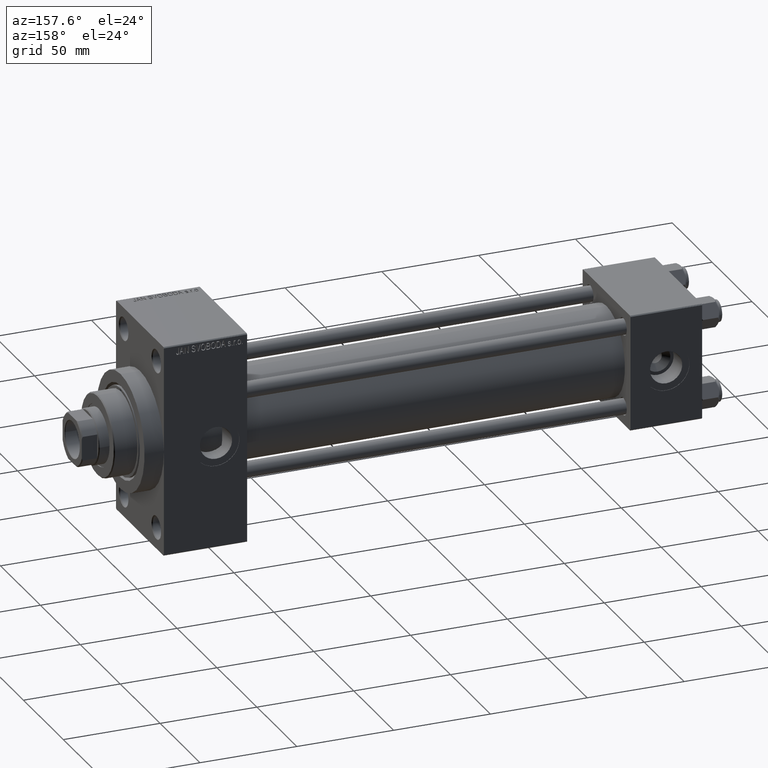
[diagram: clean part render]
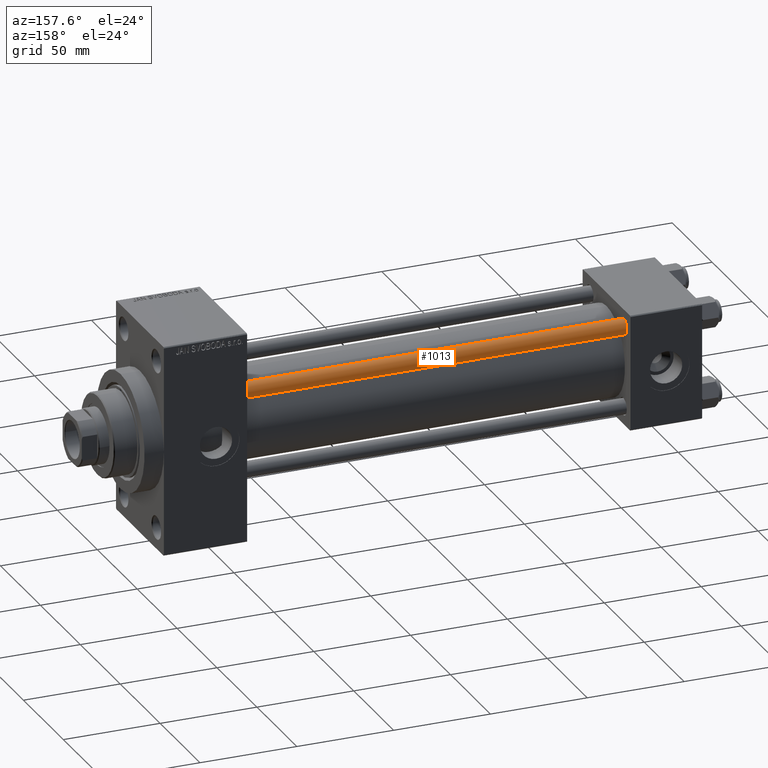
[diagram: same view with one face highlighted and labeled with its STEP entity id]
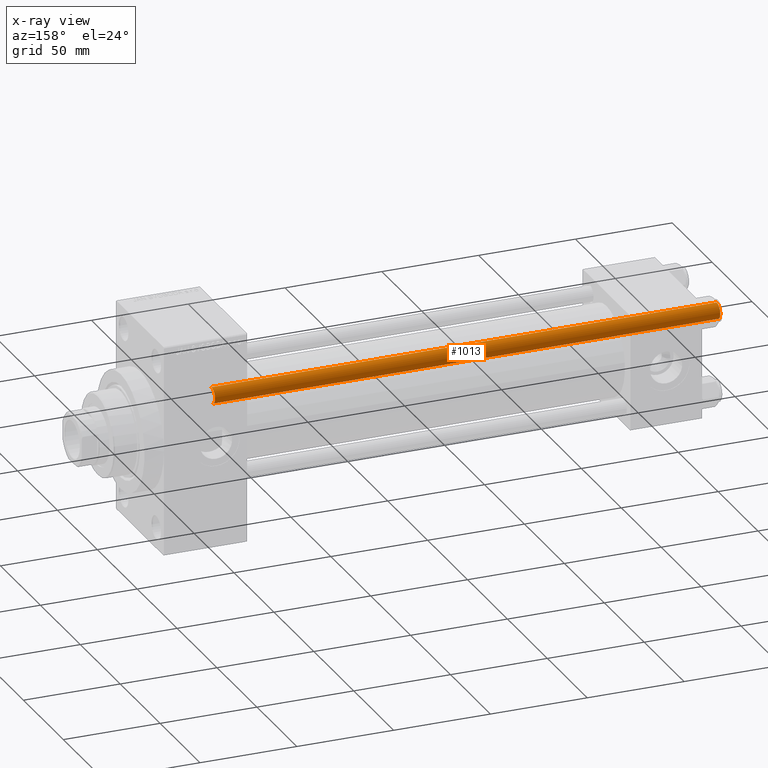
[diagram: x-ray of the same camera — body ghosted, the highlighted face saturated]
A machine part, auxiliary view. The second image highlights one B-rep face of the part: STEP entity #1013.
The next image is the same camera in x-ray: the body ghosted, the highlighted face saturated — about 0% of this face is hidden behind the body in this view.
In plain terms, the highlighted cylindrical surface (edge-blend (fillet) strip) has radius 4 mm, axis along (-1, -0, 0).
Its self-contained STEP definition (entity closure, byte-faithful):
#1013 = ADVANCED_FACE ( 'NONE', ( #40452 ), #48234, .T. ) ;
#1275 = CIRCLE ( 'NONE', #32502, 4.000000000000000000 ) ;
#4691 = EDGE_CURVE ( 'NONE', #38152, #33924, #13954, .T. ) ;
#6492 = VERTEX_POINT ( 'NONE', #19581 ) ;
#6770 = EDGE_CURVE ( 'NONE', #14084, #38152, #37309, .T. ) ;
#9616 = DIRECTION ( 'NONE',  ( -0.000000000000000000, -0.000000000000000000, -1.000000000000000000 ) ) ;
#10130 = ORIENTED_EDGE ( 'NONE', *, *, #4691, .T. ) ;
#12250 = EDGE_LOOP ( 'NONE', ( #41631, #49116, #10130, #30914 ) ) ;
#13954 = CIRCLE ( 'NONE', #18768, 4.000000000000000000 ) ;
#14084 = VERTEX_POINT ( 'NONE', #18811 ) ;
#16295 = DIRECTION ( 'NONE',  ( 1.000000000000000000, 0.000000000000000000, 0.000000000000000000 ) ) ;
#17145 = LINE ( 'NONE', #32436, #19610 ) ;
#17252 = CARTESIAN_POINT ( 'NONE',  ( -4.000000000000000000, 0.000000000000000000, 0.5000000000000559552 ) ) ;
#18768 = AXIS2_PLACEMENT_3D ( 'NONE', #24822, #47616, #43853 ) ;
#18811 = CARTESIAN_POINT ( 'NONE',  ( 4.000000000000000000, 4.898587196589412829E-16, 261.5000000000000000 ) ) ;
#19581 = CARTESIAN_POINT ( 'NONE',  ( -4.000000000000000000, 0.000000000000000000, 261.5000000000000000 ) ) ;
#19610 = VECTOR ( 'NONE', #9616, 1000.000000000000000 ) ;
#24822 = CARTESIAN_POINT ( 'NONE',  ( 0.000000000000000000, 0.000000000000000000, 0.5000000000000559552 ) ) ;
#28071 = DIRECTION ( 'NONE',  ( 0.000000000000000000, 0.000000000000000000, -1.000000000000000000 ) ) ;
#29168 = DIRECTION ( 'NONE',  ( -0.000000000000000000, -0.000000000000000000, -1.000000000000000000 ) ) ;
#30914 = ORIENTED_EDGE ( 'NONE', *, *, #35669, .F. ) ;
#32436 = CARTESIAN_POINT ( 'NONE',  ( -4.000000000000000000, 0.000000000000000000, 262.0000000000000000 ) ) ;
#32502 = AXIS2_PLACEMENT_3D ( 'NONE', #36059, #28071, #16295 ) ;
#33924 = VERTEX_POINT ( 'NONE', #17252 ) ;
#35669 = EDGE_CURVE ( 'NONE', #6492, #33924, #17145, .T. ) ;
#36059 = CARTESIAN_POINT ( 'NONE',  ( 0.000000000000000000, 0.000000000000000000, 261.5000000000000000 ) ) ;
#37179 = DIRECTION ( 'NONE',  ( -1.000000000000000000, 0.000000000000000000, 0.000000000000000000 ) ) ;
#37309 = LINE ( 'NONE', #40819, #48457 ) ;
#38152 = VERTEX_POINT ( 'NONE', #44894 ) ;
#38374 = EDGE_CURVE ( 'NONE', #6492, #14084, #1275, .T. ) ;
#40452 = FACE_OUTER_BOUND ( 'NONE', #12250, .T. ) ;
#40819 = CARTESIAN_POINT ( 'NONE',  ( 4.000000000000000000, 4.898587196589412829E-16, 262.0000000000000000 ) ) ;
#40941 = CARTESIAN_POINT ( 'NONE',  ( 0.000000000000000000, 0.000000000000000000, 262.0000000000000000 ) ) ;
#41631 = ORIENTED_EDGE ( 'NONE', *, *, #38374, .T. ) ;
#43853 = DIRECTION ( 'NONE',  ( 1.000000000000000000, 0.000000000000000000, 0.000000000000000000 ) ) ;
#44841 = DIRECTION ( 'NONE',  ( -0.000000000000000000, -0.000000000000000000, -1.000000000000000000 ) ) ;
#44894 = CARTESIAN_POINT ( 'NONE',  ( 4.000000000000000000, 4.898587196589412829E-16, 0.5000000000000559552 ) ) ;
#47616 = DIRECTION ( 'NONE',  ( -0.000000000000000000, -0.000000000000000000, 1.000000000000000000 ) ) ;
#48234 = CYLINDRICAL_SURFACE ( 'NONE', #48367, 4.000000000000000000 ) ;
#48367 = AXIS2_PLACEMENT_3D ( 'NONE', #40941, #29168, #37179 ) ;
#48457 = VECTOR ( 'NONE', #44841, 1000.000000000000000 ) ;
#49116 = ORIENTED_EDGE ( 'NONE', *, *, #6770, .T. ) ;